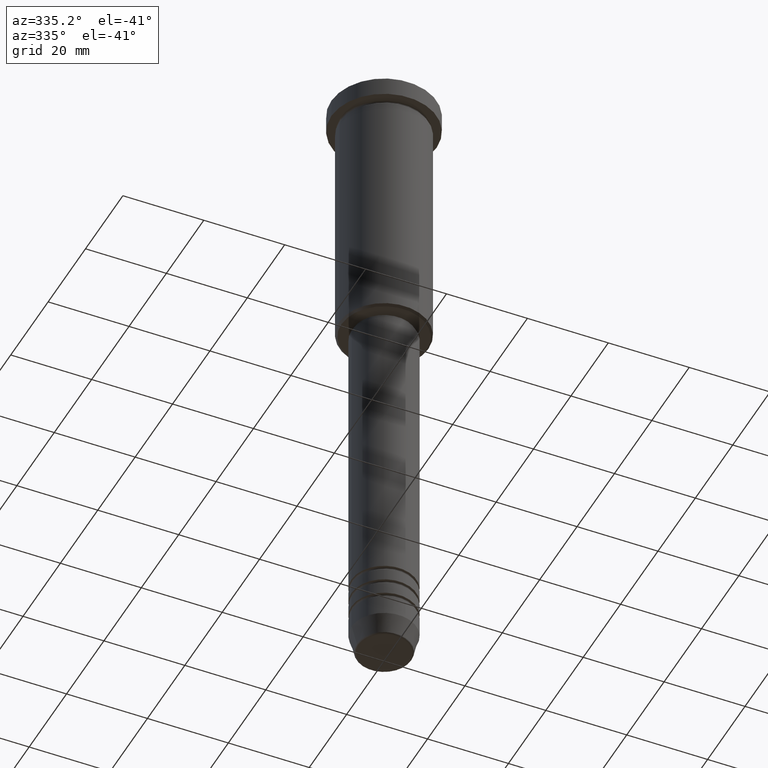
[diagram: clean part render]
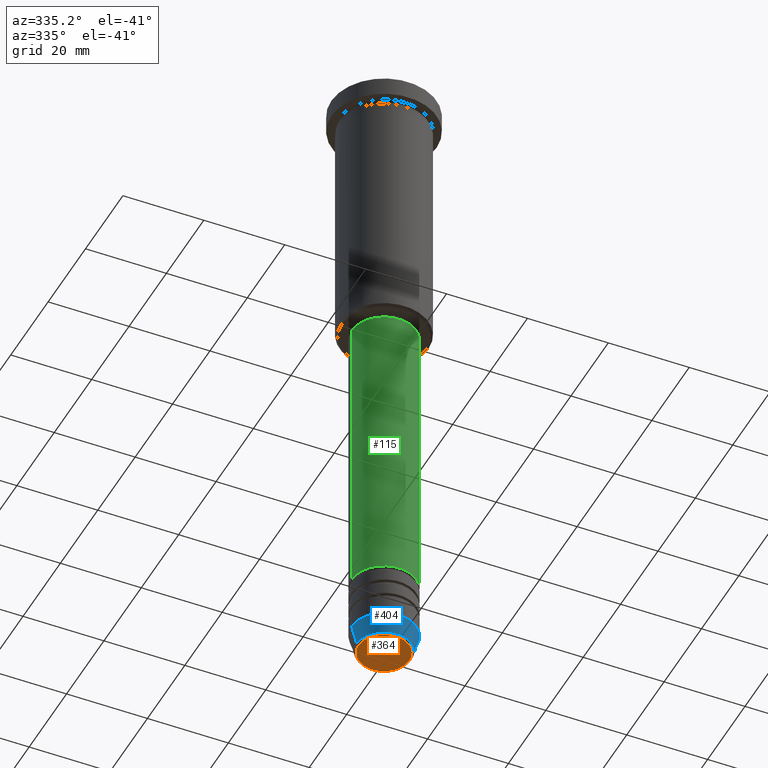
[diagram: same view with three faces highlighted in distinct colors, each labeled with its STEP entity id]
A machine part, auxiliary view with three faces highlighted in distinct colors.
Their STEP definitions:

[orange] entity #364 — the highlighted planar face has unit normal (0, -0, 1).
#157 = VERTEX_POINT ( 'NONE', #462 ) ;
#204 = DIRECTION ( 'NONE',  ( 1.000000000000000000, 0.000000000000000000, 0.000000000000000000 ) ) ;
#266 = DIRECTION ( 'NONE',  ( 0.000000000000000000, 0.000000000000000000, -1.000000000000000000 ) ) ;
#280 = VERTEX_POINT ( 'NONE', #668 ) ;
#355 = CIRCLE ( 'NONE', #890, 6.276590543854903892 ) ;
#364 = ADVANCED_FACE ( 'NONE', ( #536 ), #726, .F. ) ;
#446 = CARTESIAN_POINT ( 'NONE',  ( 0.000000000000000000, 0.000000000000000000, -160.0000000000000284 ) ) ;
#462 = CARTESIAN_POINT ( 'NONE',  ( 6.276590543854903892, 0.000000000000000000, -160.0000000000000284 ) ) ;
#527 = DIRECTION ( 'NONE',  ( 0.000000000000000000, -0.000000000000000000, 1.000000000000000000 ) ) ;
#536 = FACE_OUTER_BOUND ( 'NONE', #961, .T. ) ;
#547 = CARTESIAN_POINT ( 'NONE',  ( 0.000000000000000000, 0.000000000000000000, -160.0000000000000284 ) ) ;
#579 = EDGE_CURVE ( 'NONE', #280, #157, #1156, .T. ) ;
#668 = CARTESIAN_POINT ( 'NONE',  ( -6.276590543854903892, 7.982336011935122327E-16, -160.0000000000000284 ) ) ;
#716 = ORIENTED_EDGE ( 'NONE', *, *, #579, .T. ) ;
#726 = PLANE ( 'NONE',  #1021 ) ;
#802 = DIRECTION ( 'NONE',  ( 1.000000000000000000, 0.000000000000000000, 0.000000000000000000 ) ) ;
#890 = AXIS2_PLACEMENT_3D ( 'NONE', #994, #976, #1068 ) ;
#908 = EDGE_CURVE ( 'NONE', #157, #280, #355, .T. ) ;
#961 = EDGE_LOOP ( 'NONE', ( #987, #716 ) ) ;
#976 = DIRECTION ( 'NONE',  ( 0.000000000000000000, 0.000000000000000000, -1.000000000000000000 ) ) ;
#987 = ORIENTED_EDGE ( 'NONE', *, *, #908, .T. ) ;
#990 = AXIS2_PLACEMENT_3D ( 'NONE', #547, #266, #204 ) ;
#994 = CARTESIAN_POINT ( 'NONE',  ( 0.000000000000000000, 0.000000000000000000, -160.0000000000000284 ) ) ;
#1021 = AXIS2_PLACEMENT_3D ( 'NONE', #446, #527, #802 ) ;
#1068 = DIRECTION ( 'NONE',  ( 1.000000000000000000, 0.000000000000000000, 0.000000000000000000 ) ) ;
#1156 = CIRCLE ( 'NONE', #990, 6.276590543854903892 ) ;

[blue] entity #404 — the highlighted conical surface has half-angle 15 deg.
#10 = AXIS2_PLACEMENT_3D ( 'NONE', #436, #336, #255 ) ;
#33 = CARTESIAN_POINT ( 'NONE',  ( -8.000000000000000000, 9.797174393178825657E-16, -155.0000000000000000 ) ) ;
#69 = CONICAL_SURFACE ( 'NONE', #734, 8.000000000000000000, 0.2617993877991488527 ) ;
#98 = VERTEX_POINT ( 'NONE', #289 ) ;
#100 = CARTESIAN_POINT ( 'NONE',  ( 0.000000000000000000, 0.000000000000000000, -159.6294095225512706 ) ) ;
#231 = VERTEX_POINT ( 'NONE', #33 ) ;
#255 = DIRECTION ( 'NONE',  ( 1.000000000000000000, 0.000000000000000000, 0.000000000000000000 ) ) ;
#256 = CIRCLE ( 'NONE', #677, 6.759553456999438659 ) ;
#286 = DIRECTION ( 'NONE',  ( -0.000000000000000000, -0.000000000000000000, 1.000000000000000000 ) ) ;
#289 = CARTESIAN_POINT ( 'NONE',  ( -6.759553456999439547, 9.037619948979308185E-16, -159.6294095225512706 ) ) ;
#296 = VERTEX_POINT ( 'NONE', #589 ) ;
#336 = DIRECTION ( 'NONE',  ( -0.000000000000000000, -0.000000000000000000, 1.000000000000000000 ) ) ;
#404 = ADVANCED_FACE ( 'NONE', ( #712 ), #69, .T. ) ;
#436 = CARTESIAN_POINT ( 'NONE',  ( 0.000000000000000000, 0.000000000000000000, -155.0000000000000000 ) ) ;
#450 = VECTOR ( 'NONE', #648, 999.9999999999998863 ) ;
#453 = ORIENTED_EDGE ( 'NONE', *, *, #1015, .F. ) ;
#463 = EDGE_CURVE ( 'NONE', #98, #296, #256, .T. ) ;
#560 = CIRCLE ( 'NONE', #10, 8.000000000000000000 ) ;
#589 = CARTESIAN_POINT ( 'NONE',  ( 6.759553456999438659, 0.000000000000000000, -159.6294095225512706 ) ) ;
#648 = DIRECTION ( 'NONE',  ( -0.2588190451025202399, 3.169619151431758162E-17, 0.9659258262890684232 ) ) ;
#662 = CARTESIAN_POINT ( 'NONE',  ( 8.000000000000000000, 0.000000000000000000, -155.0000000000000000 ) ) ;
#677 = AXIS2_PLACEMENT_3D ( 'NONE', #100, #286, #831 ) ;
#697 = EDGE_CURVE ( 'NONE', #296, #1076, #1140, .T. ) ;
#702 = CARTESIAN_POINT ( 'NONE',  ( 0.000000000000000000, 0.000000000000000000, -155.0000000000000000 ) ) ;
#712 = FACE_OUTER_BOUND ( 'NONE', #783, .T. ) ;
#734 = AXIS2_PLACEMENT_3D ( 'NONE', #702, #986, #1079 ) ;
#735 = VECTOR ( 'NONE', #760, 999.9999999999998863 ) ;
#743 = LINE ( 'NONE', #936, #450 ) ;
#760 = DIRECTION ( 'NONE',  ( 0.2588190451025202399, 0.000000000000000000, 0.9659258262890684232 ) ) ;
#783 = EDGE_LOOP ( 'NONE', ( #453, #1177, #1056, #935 ) ) ;
#831 = DIRECTION ( 'NONE',  ( 1.000000000000000000, 0.000000000000000000, 0.000000000000000000 ) ) ;
#917 = EDGE_CURVE ( 'NONE', #231, #1076, #560, .T. ) ;
#935 = ORIENTED_EDGE ( 'NONE', *, *, #917, .F. ) ;
#936 = CARTESIAN_POINT ( 'NONE',  ( -8.000000000000000000, 9.797174393178825657E-16, -155.0000000000000000 ) ) ;
#939 = CARTESIAN_POINT ( 'NONE',  ( 8.000000000000000000, 0.000000000000000000, -155.0000000000000000 ) ) ;
#986 = DIRECTION ( 'NONE',  ( -0.000000000000000000, -0.000000000000000000, 1.000000000000000000 ) ) ;
#1015 = EDGE_CURVE ( 'NONE', #98, #231, #743, .T. ) ;
#1056 = ORIENTED_EDGE ( 'NONE', *, *, #697, .T. ) ;
#1076 = VERTEX_POINT ( 'NONE', #939 ) ;
#1079 = DIRECTION ( 'NONE',  ( 1.000000000000000000, 0.000000000000000000, 0.000000000000000000 ) ) ;
#1140 = LINE ( 'NONE', #662, #735 ) ;
#1177 = ORIENTED_EDGE ( 'NONE', *, *, #463, .T. ) ;

[green] entity #115 — the highlighted cylindrical surface (edge-blend (fillet) strip) has radius 8 mm, axis along (-0, -0, 1).
#65 = CARTESIAN_POINT ( 'NONE',  ( 0.000000000000000000, 0.000000000000000000, -67.00000000000002842 ) ) ;
#70 = ORIENTED_EDGE ( 'NONE', *, *, #479, .T. ) ;
#87 = VECTOR ( 'NONE', #1170, 1000.000000000000000 ) ;
#95 = VERTEX_POINT ( 'NONE', #474 ) ;
#115 = ADVANCED_FACE ( 'NONE', ( #188 ), #1011, .T. ) ;
#117 = DIRECTION ( 'NONE',  ( 1.000000000000000000, 0.000000000000000000, 0.000000000000000000 ) ) ;
#154 = DIRECTION ( 'NONE',  ( 1.000000000000000000, 0.000000000000000000, 0.000000000000000000 ) ) ;
#188 = FACE_OUTER_BOUND ( 'NONE', #582, .T. ) ;
#205 = DIRECTION ( 'NONE',  ( -0.000000000000000000, -0.000000000000000000, 1.000000000000000000 ) ) ;
#303 = CARTESIAN_POINT ( 'NONE',  ( 0.000000000000000000, 0.000000000000000000, 0.000000000000000000 ) ) ;
#343 = CARTESIAN_POINT ( 'NONE',  ( -8.000000000000000000, 9.797174393178825657E-16, -141.0000000000000000 ) ) ;
#354 = CARTESIAN_POINT ( 'NONE',  ( 0.000000000000000000, 0.000000000000000000, -141.0000000000000000 ) ) ;
#370 = VERTEX_POINT ( 'NONE', #343 ) ;
#376 = AXIS2_PLACEMENT_3D ( 'NONE', #303, #205, #117 ) ;
#378 = LINE ( 'NONE', #744, #602 ) ;
#384 = EDGE_CURVE ( 'NONE', #95, #675, #625, .T. ) ;
#390 = EDGE_CURVE ( 'NONE', #370, #410, #755, .T. ) ;
#410 = VERTEX_POINT ( 'NONE', #1154 ) ;
#474 = CARTESIAN_POINT ( 'NONE',  ( -8.000000000000000000, 9.797174393178825657E-16, -67.00000000000002842 ) ) ;
#479 = EDGE_CURVE ( 'NONE', #410, #675, #378, .T. ) ;
#580 = AXIS2_PLACEMENT_3D ( 'NONE', #65, #624, #154 ) ;
#582 = EDGE_LOOP ( 'NONE', ( #900, #628, #70, #678 ) ) ;
#602 = VECTOR ( 'NONE', #635, 1000.000000000000000 ) ;
#624 = DIRECTION ( 'NONE',  ( -0.000000000000000000, -0.000000000000000000, 1.000000000000000000 ) ) ;
#625 = CIRCLE ( 'NONE', #580, 8.000000000000000000 ) ;
#628 = ORIENTED_EDGE ( 'NONE', *, *, #390, .T. ) ;
#635 = DIRECTION ( 'NONE',  ( -0.000000000000000000, -0.000000000000000000, 1.000000000000000000 ) ) ;
#673 = CARTESIAN_POINT ( 'NONE',  ( 8.000000000000000000, 0.000000000000000000, -67.00000000000002842 ) ) ;
#675 = VERTEX_POINT ( 'NONE', #673 ) ;
#678 = ORIENTED_EDGE ( 'NONE', *, *, #384, .F. ) ;
#701 = CARTESIAN_POINT ( 'NONE',  ( -8.000000000000000000, 9.797174393178825657E-16, 0.000000000000000000 ) ) ;
#708 = DIRECTION ( 'NONE',  ( -0.000000000000000000, -0.000000000000000000, 1.000000000000000000 ) ) ;
#719 = LINE ( 'NONE', #701, #87 ) ;
#744 = CARTESIAN_POINT ( 'NONE',  ( 8.000000000000000000, 0.000000000000000000, 0.000000000000000000 ) ) ;
#755 = CIRCLE ( 'NONE', #1099, 8.000000000000000000 ) ;
#782 = EDGE_CURVE ( 'NONE', #370, #95, #719, .T. ) ;
#900 = ORIENTED_EDGE ( 'NONE', *, *, #782, .F. ) ;
#1011 = CYLINDRICAL_SURFACE ( 'NONE', #376, 8.000000000000000000 ) ;
#1091 = DIRECTION ( 'NONE',  ( 1.000000000000000000, 0.000000000000000000, 0.000000000000000000 ) ) ;
#1099 = AXIS2_PLACEMENT_3D ( 'NONE', #354, #708, #1091 ) ;
#1154 = CARTESIAN_POINT ( 'NONE',  ( 8.000000000000000000, 0.000000000000000000, -141.0000000000000000 ) ) ;
#1170 = DIRECTION ( 'NONE',  ( -0.000000000000000000, -0.000000000000000000, 1.000000000000000000 ) ) ;